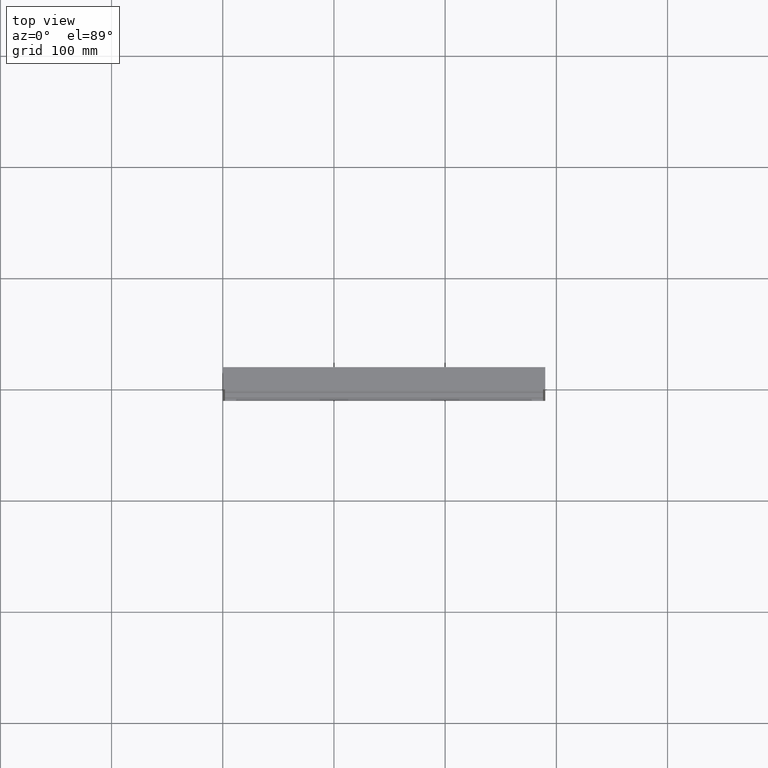
[diagram: clean part render]
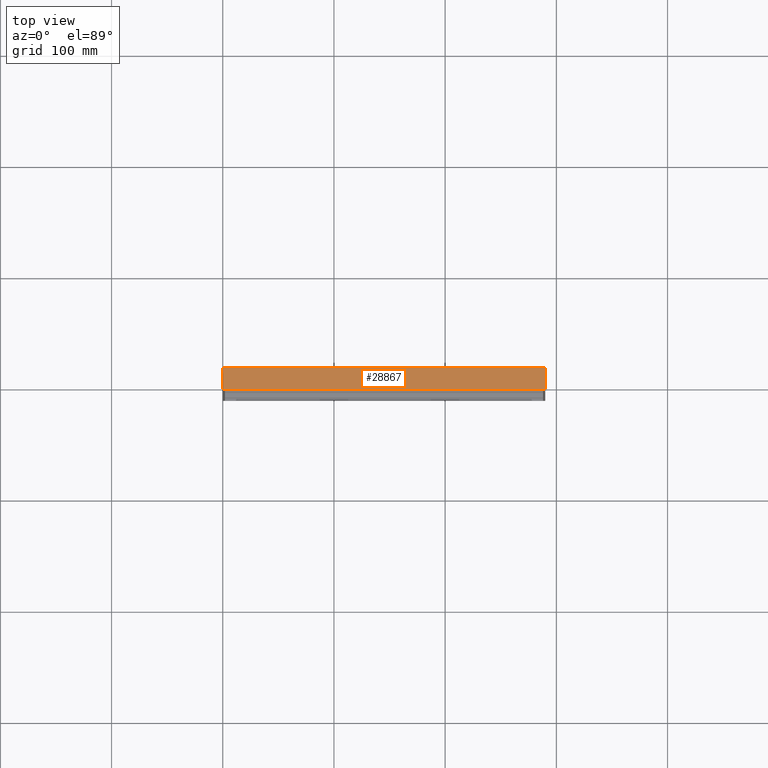
[diagram: same view with one face highlighted and labeled with its STEP entity id]
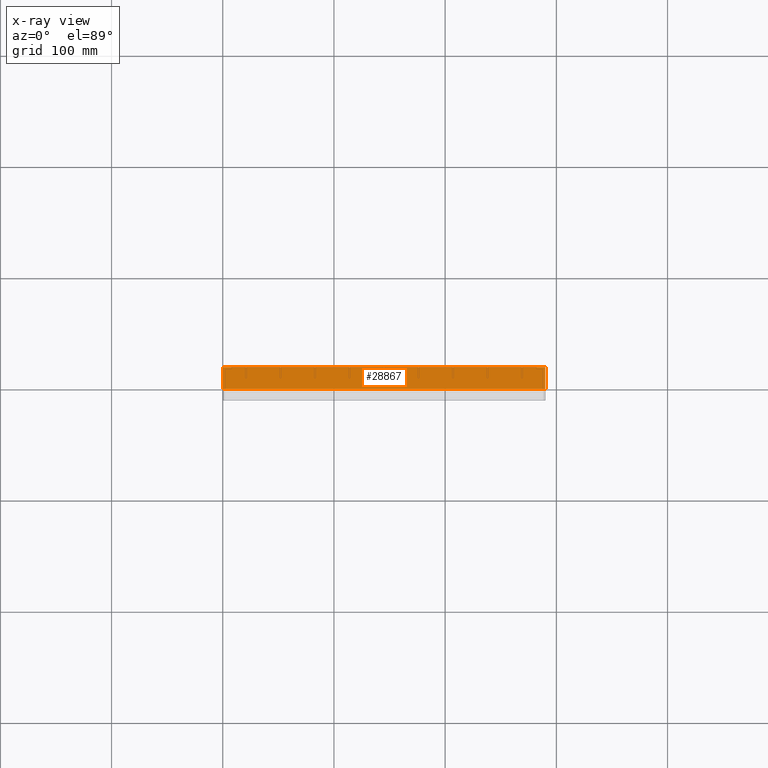
[diagram: x-ray of the same camera — body ghosted, the highlighted face saturated]
A machine part, top view. The second image highlights one B-rep face of the part: STEP entity #28867.
The next image is the same camera in x-ray: the body ghosted, the highlighted face saturated — about 0% of this face is hidden behind the body in this view.
In plain terms, the highlighted planar face has unit normal (0, 0, -1).
Its self-contained STEP definition (entity closure, byte-faithful):
#2130 = CARTESIAN_POINT ( 'NONE',  ( 290.0000000000000600, 9.999999999999746000, 1.110223024625156500E-013 ) ) ;
#2536 = VERTEX_POINT ( 'NONE', #11856 ) ;
#3464 = FACE_OUTER_BOUND ( 'NONE', #22641, .T. ) ;
#4166 = VERTEX_POINT ( 'NONE', #18401 ) ;
#4413 = AXIS2_PLACEMENT_3D ( 'NONE', #2130, #8887, #22255 ) ;
#4562 = CARTESIAN_POINT ( 'NONE',  ( 1.530808498934191500E-015, -10.00000000000000000, -1.665334536937734800E-013 ) ) ;
#4694 = ORIENTED_EDGE ( 'NONE', *, *, #18874, .T. ) ;
#4698 = EDGE_CURVE ( 'NONE', #4166, #10804, #25075, .T. ) ;
#4758 = CARTESIAN_POINT ( 'NONE',  ( -1.110223024625157600E-013, 10.00000000000000000, 1.089981928716811900E-013 ) ) ;
#4855 = CARTESIAN_POINT ( 'NONE',  ( -1.020538999289460800E-015, 3.333333333333333900, 0.0000000000000000000 ) ) ;
#5433 = B_SPLINE_CURVE_WITH_KNOTS ( 'NONE', 3,
 ( #4562, #15451, #4855, #4758 ),
 .UNSPECIFIED., .F., .F.,
 ( 4, 4 ),
 ( 0.0000000000000000000, 1.000000000000000000 ),
 .UNSPECIFIED. ) ;
#6524 = ORIENTED_EDGE ( 'NONE', *, *, #25262, .F. ) ;
#6620 = VECTOR ( 'NONE', #17186, 1000.000000000000000 ) ;
#8887 = DIRECTION ( 'NONE',  ( 6.979688244257067800E-018, 3.061616997868383100E-016, -1.000000000000000000 ) ) ;
#9323 = ORIENTED_EDGE ( 'NONE', *, *, #28971, .F. ) ;
#10506 = LINE ( 'NONE', #27971, #27239 ) ;
#10804 = VERTEX_POINT ( 'NONE', #11831 ) ;
#10952 = PLANE ( 'NONE',  #4413 ) ;
#11510 = DIRECTION ( 'NONE',  ( -1.000000000000000000, 0.0000000000000000000, -6.979688244257067800E-018 ) ) ;
#11831 = CARTESIAN_POINT ( 'NONE',  ( 290.0000000000000600, -10.00000000000000000, 5.551115123125782700E-014 ) ) ;
#11856 = CARTESIAN_POINT ( 'NONE',  ( -1.110223024625157600E-013, 10.00000000000000000, 1.089981928716811900E-013 ) ) ;
#13106 = CARTESIAN_POINT ( 'NONE',  ( 290.0000000000000600, 9.999999999999746000, 1.110223024625156500E-013 ) ) ;
#15451 = CARTESIAN_POINT ( 'NONE',  ( 1.020538999289461500E-015, -3.333333333333333900, 0.0000000000000000000 ) ) ;
#15989 = ORIENTED_EDGE ( 'NONE', *, *, #4698, .F. ) ;
#17186 = DIRECTION ( 'NONE',  ( -3.061616997868384100E-016, -1.000000000000000000, -3.061616997868383600E-016 ) ) ;
#18401 = CARTESIAN_POINT ( 'NONE',  ( 290.0000000000000600, 10.00000000000000000, 0.0000000000000000000 ) ) ;
#18874 = EDGE_CURVE ( 'NONE', #4166, #2536, #10506, .T. ) ;
#21032 = DIRECTION ( 'NONE',  ( -1.000000000000000000, 0.0000000000000000000, -6.979688244257067800E-018 ) ) ;
#22255 = DIRECTION ( 'NONE',  ( 0.0000000000000000000, 1.000000000000000000, 3.061616997868383100E-016 ) ) ;
#22641 = EDGE_LOOP ( 'NONE', ( #4694, #6524, #9323, #15989 ) ) ;
#24371 = CARTESIAN_POINT ( 'NONE',  ( 1.530808498934191500E-015, -10.00000000000000000, -1.665334536937734800E-013 ) ) ;
#24762 = LINE ( 'NONE', #27275, #25816 ) ;
#25075 = LINE ( 'NONE', #13106, #6620 ) ;
#25262 = EDGE_CURVE ( 'NONE', #27620, #2536, #5433, .T. ) ;
#25816 = VECTOR ( 'NONE', #11510, 1000.000000000000000 ) ;
#27239 = VECTOR ( 'NONE', #21032, 1000.000000000000000 ) ;
#27275 = CARTESIAN_POINT ( 'NONE',  ( 290.0000000000000600, -10.00000000000000000, 5.551115123125782700E-014 ) ) ;
#27620 = VERTEX_POINT ( 'NONE', #24371 ) ;
#27971 = CARTESIAN_POINT ( 'NONE',  ( 290.0000000000000600, 10.00000000000000000, 0.0000000000000000000 ) ) ;
#28867 = ADVANCED_FACE ( 'NONE', ( #3464 ), #10952, .F. ) ;
#28971 = EDGE_CURVE ( 'NONE', #10804, #27620, #24762, .T. ) ;